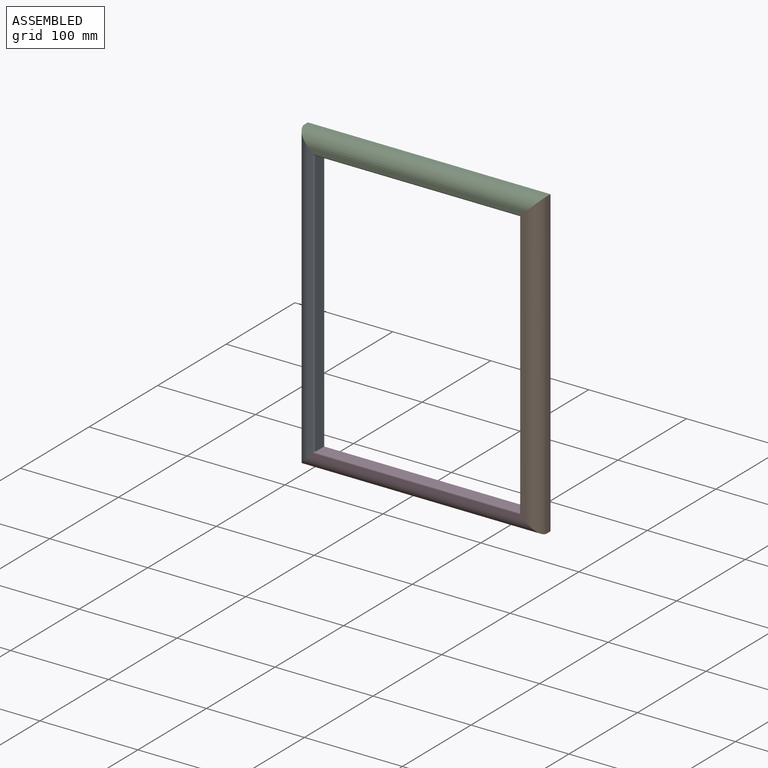
[diagram: assembled view]
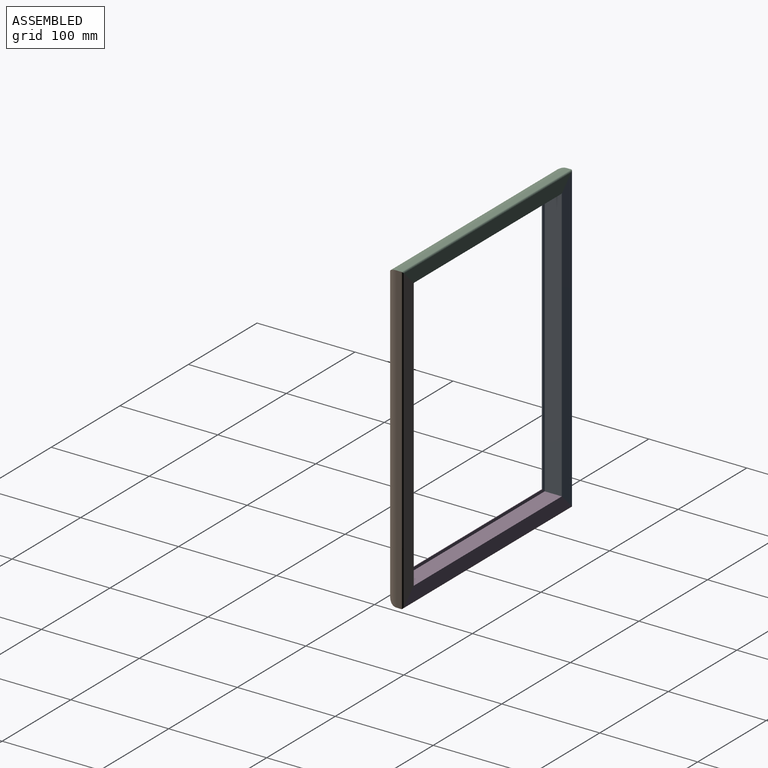
[diagram: assembled view, second angle]
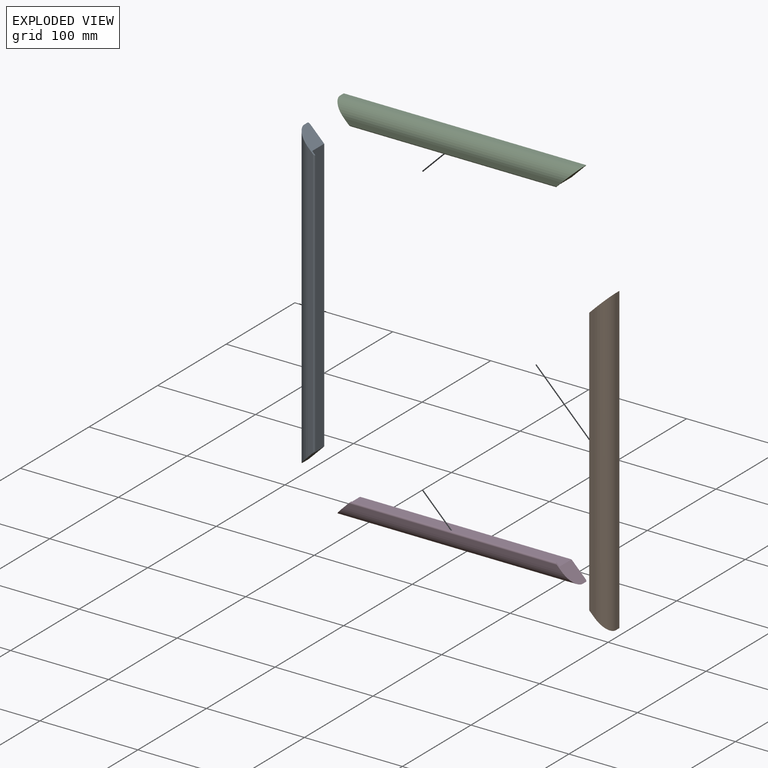
[diagram: exploded view]
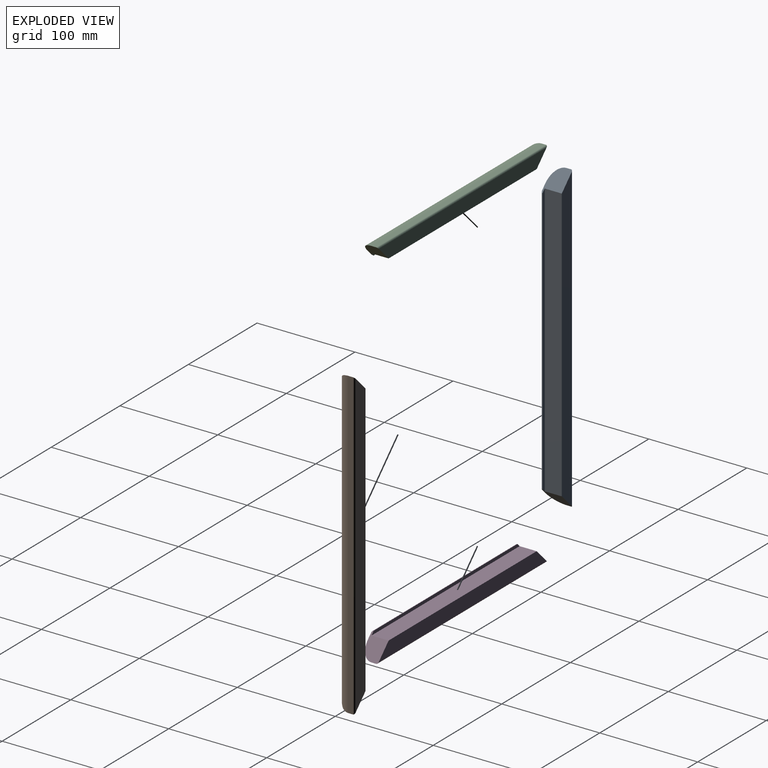
[diagram: exploded view, second angle]
ASSEMBLY  parts=4 mates=3
PART A: 10 faces, bbox 19.1x19.1x311.2 mm
  f0: plane 285.75x4.76mm, normal (0,-1,0), area 1338.2mm2, adj f3,f5,f8,f9
  f1: plane 307.98x14.29mm, normal (0,1,0), area 4196.1mm2, adj f2,f4,f8,f9
  f2: cylinder r=1.59mm len=311.15mm, axis (0,0,-1), area 773mm2, adj f1,f7,f8,f9
  f3: cylinder r=12.7mm len=311.15mm, axis (0,0,-1), area 6023mm2, adj f0,f7,f8,f9
  f4: plane 279.4x17.46mm, normal (1,0,0), area 4879mm2, adj f1,f6,f8,f9
  f5: cylinder r=1.59mm len=276.23mm, axis (0,0,-1), area 683.8mm2, adj f0,f6,f8,f9
  f6: plane 279.4x3.18mm, normal (0,1,0), area 877mm2, adj f4,f5,f8,f9
  f7: plane 311.15x4.76mm, normal (-1,0,0), area 1481.9mm2, adj f2,f3,f8,f9
  f8: plane 19.05x19.05mm, normal (0.71,0,0.71), area 384.3mm2, adj f0,f1,f2,f3,f4,f5,f6,f7
  f9: plane 19.05x19.05mm, normal (0.71,0,-0.71), area 384.3mm2, adj f0,f1,f2,f3,f4,f5,f6,f7
PART B: same geometry as A
PART C: 10 faces, bbox 19.1x19.1x247.7 mm
  f0: plane 222.25x4.76mm, normal (0,-1,0), area 1035.8mm2, adj f3,f5,f8,f9
  f1: plane 244.48x14.29mm, normal (0,1,0), area 3288.8mm2, adj f2,f4,f8,f9
  f2: cylinder r=1.59mm len=247.65mm, axis (0,0,-1), area 614.7mm2, adj f1,f7,f8,f9
  f3: cylinder r=12.7mm len=247.65mm, axis (0,0,-1), area 4756.3mm2, adj f0,f7,f8,f9
  f4: plane 215.9x17.46mm, normal (1,0,0), area 3770.2mm2, adj f1,f6,f8,f9
  f5: cylinder r=1.59mm len=212.73mm, axis (0,0,-1), area 525.4mm2, adj f0,f6,f8,f9
  f6: plane 215.9x3.18mm, normal (0,1,0), area 675.4mm2, adj f4,f5,f8,f9
  f7: plane 247.65x4.76mm, normal (-1,0,0), area 1179.4mm2, adj f2,f3,f8,f9
  f8: plane 19.05x19.05mm, normal (0.71,0,-0.71), area 384.3mm2, adj f0,f1,f2,f3,f4,f5,f6,f7
  f9: plane 19.05x19.05mm, normal (0.71,0,0.71), area 384.3mm2, adj f0,f1,f2,f3,f4,f5,f6,f7
PART D: same geometry as C
PLACE A at identity fixed
PLACE B rot(axis=(0,1,0),180deg) t=(209.55,0,265.69)mm
PLACE C rot(axis=(0,1,0),90deg) t=(3.68,0,269.37)mm
PLACE D rot(axis=(0,-1,0),90deg) t=(205.87,0,-3.68)mm
MATE fastened C.f9 <-> B.f9  axis (0.71,0,-0.71) through (219.84,10.22,279.66)mm
MATE fastened A.f9 <-> D.f9  axis (0.71,0,-0.71) through (-10.29,10.21,-13.97)mm
MATE fastened A.f8 <-> C.f8  axis (0.71,0,0.71) through (-10.29,10.21,279.66)mm
